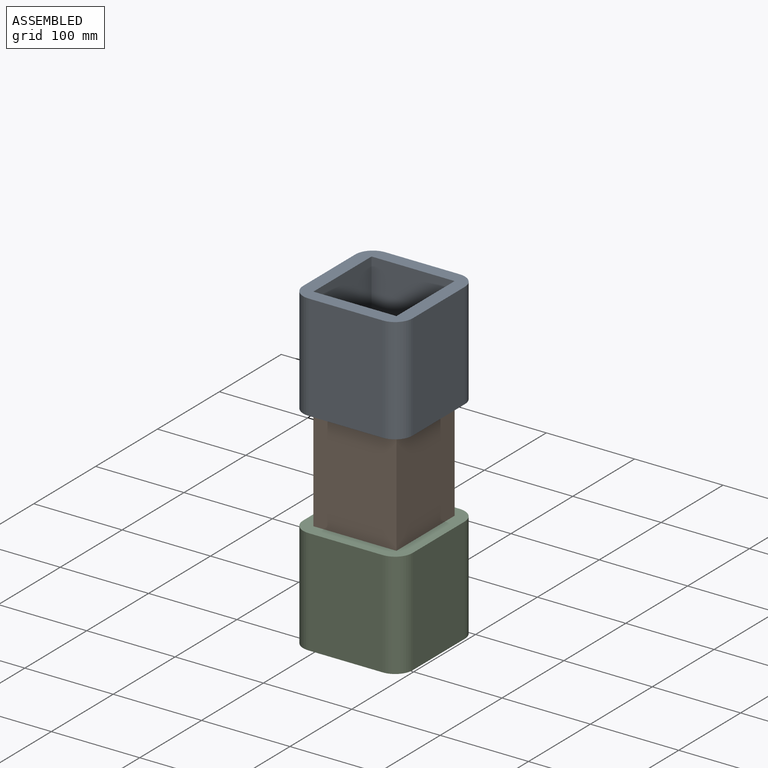
[diagram: assembled view]
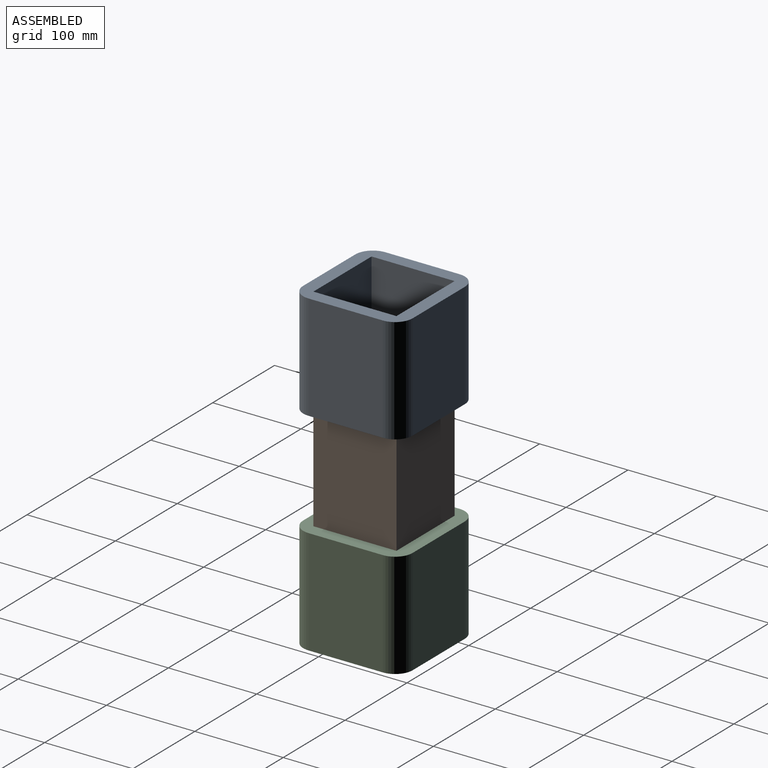
[diagram: assembled view, second angle]
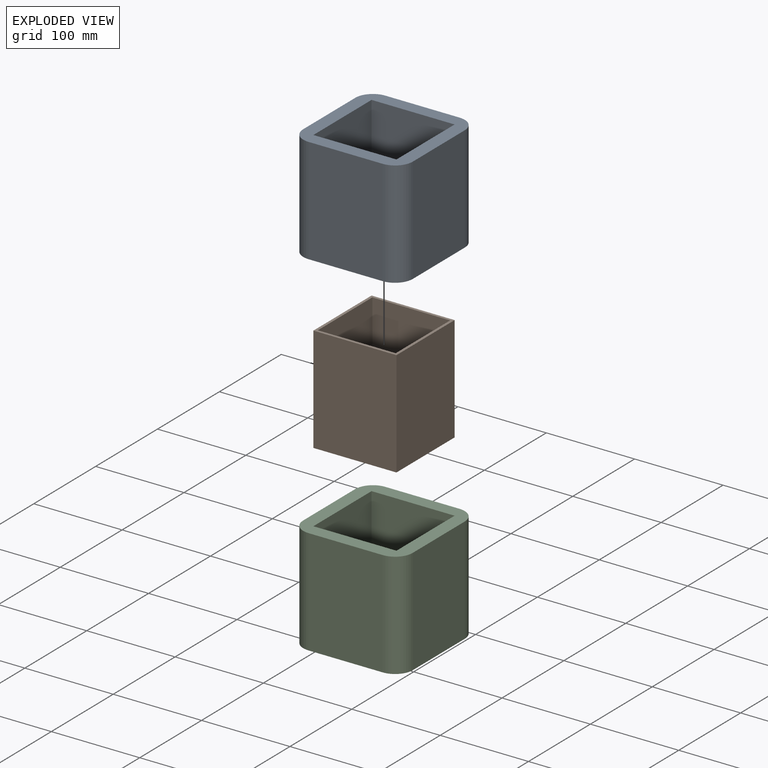
[diagram: exploded view]
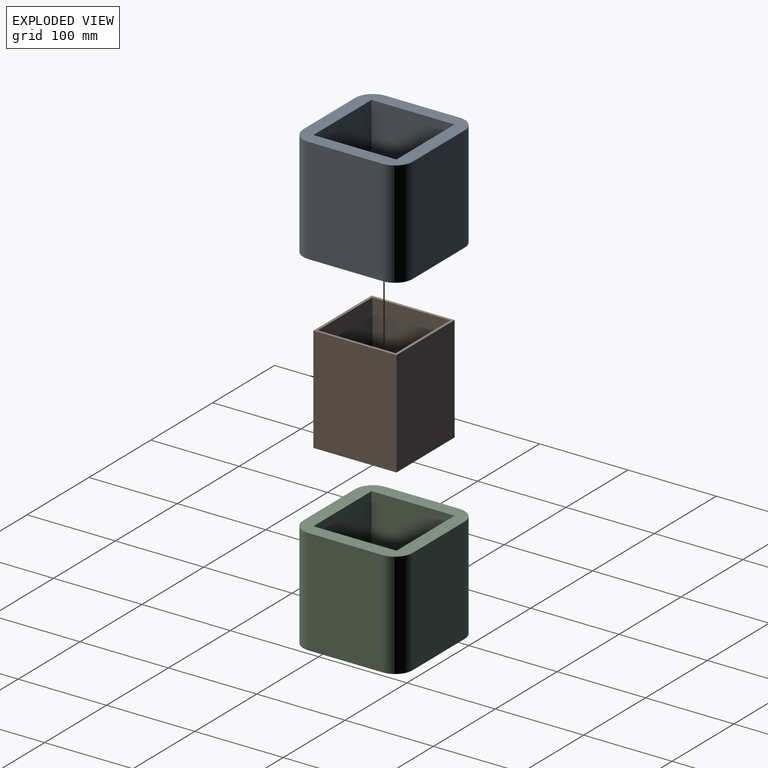
[diagram: exploded view, second angle]
ASSEMBLY  parts=3 mates=6
PART A: 14 faces, bbox 124x124x120 mm
  f0: plane 120x94mm, normal (0,-1,0), area 11280mm2, adj f1,f7,f8,f9
  f1: plane 120x94mm, normal (-1,0,0), area 11280mm2, adj f0,f2,f8,f9
  f2: plane 120x94mm, normal (0,1,0), area 11280mm2, adj f1,f7,f8,f9
  f3: plane 120x84mm, normal (1,0,0), area 10080mm2, adj f8,f9,f10,f13
  f4: plane 120x84mm, normal (0,1,0), area 10080mm2, adj f8,f9,f10,f11
  f5: plane 120x84mm, normal (-1,0,0), area 10080mm2, adj f8,f9,f11,f12
  f6: plane 120x84mm, normal (0,-1,0), area 10080mm2, adj f8,f9,f12,f13
  f7: plane 120x94mm, normal (1,0,0), area 11280mm2, adj f0,f2,f8,f9
  f8: plane 124x124mm, normal (0,0,1), area 6196.6mm2, adj f0,f1,f2,f3,f4,f5,f6,f7
  f9: plane 124x124mm, normal (0,0,-1), area 6196.6mm2, adj f0,f1,f2,f3,f4,f5,f6,f7
  f10: cylinder r=20mm len=120mm, axis (0,0,1), area 3769.9mm2, adj f3,f4,f8,f9
  f11: cylinder r=20mm len=120mm, axis (0,0,-1), area 3769.9mm2, adj f4,f5,f8,f9
  f12: cylinder r=20mm len=120mm, axis (0,0,1), area 3769.9mm2, adj f5,f6,f8,f9
  f13: cylinder r=20mm len=120mm, axis (0,0,-1), area 3769.9mm2, adj f3,f6,f8,f9
PART B: 10 faces, bbox 94x94x120 mm
  f0: plane 120x94mm, normal (0,1,0), area 11280mm2, adj f1,f7,f8,f9
  f1: plane 120x94mm, normal (-1,0,0), area 11280mm2, adj f0,f2,f8,f9
  f2: plane 120x94mm, normal (0,-1,0), area 11280mm2, adj f1,f7,f8,f9
  f3: plane 120x88mm, normal (1,0,0), area 10560mm2, adj f4,f6,f8,f9
  f4: plane 120x88mm, normal (0,-1,0), area 10560mm2, adj f3,f5,f8,f9
  f5: plane 120x88mm, normal (-1,0,0), area 10560mm2, adj f4,f6,f8,f9
  f6: plane 120x88mm, normal (0,1,0), area 10560mm2, adj f3,f5,f8,f9
  f7: plane 120x94mm, normal (1,0,0), area 11280mm2, adj f0,f2,f8,f9
  f8: plane 94x94mm, normal (0,0,1), area 1092mm2, adj f0,f1,f2,f3,f4,f5,f6,f7
  f9: plane 94x94mm, normal (0,0,-1), area 1092mm2, adj f0,f1,f2,f3,f4,f5,f6,f7
PART C: same geometry as A
PLACE A rot(axis=(0.76,-0.45,-0.47),0deg) t=(-257.31,-66.05,264.7)mm
PLACE B rot(axis=(0.76,-0.45,-0.47),0deg) t=(-257.31,-66.05,144.7)mm
PLACE C rot(axis=(0.76,-0.45,-0.47),0deg) t=(-257.31,-66.05,24.7)mm
MATE planar B.f0 <-> A.f0  axis (0,1,0) through (-257.31,-19.05,204.7)mm
MATE planar B.f2 <-> C.f2  axis (0,-1,0) through (-257.31,-113.05,204.7)mm
MATE planar B.f7 <-> C.f1  axis (1,0,0) through (-210.31,-66.05,204.7)mm
MATE planar A.f1 <-> B.f7  axis (-1,0,0) through (-210.31,-66.05,384.7)mm
MATE planar A.f9 <-> B.f8  axis (0,0,-1) through (-257.31,-66.05,264.7)mm
MATE planar B.f9 <-> C.f12  axis (0,0,-1) through (-257.31,-66.05,144.7)mm
